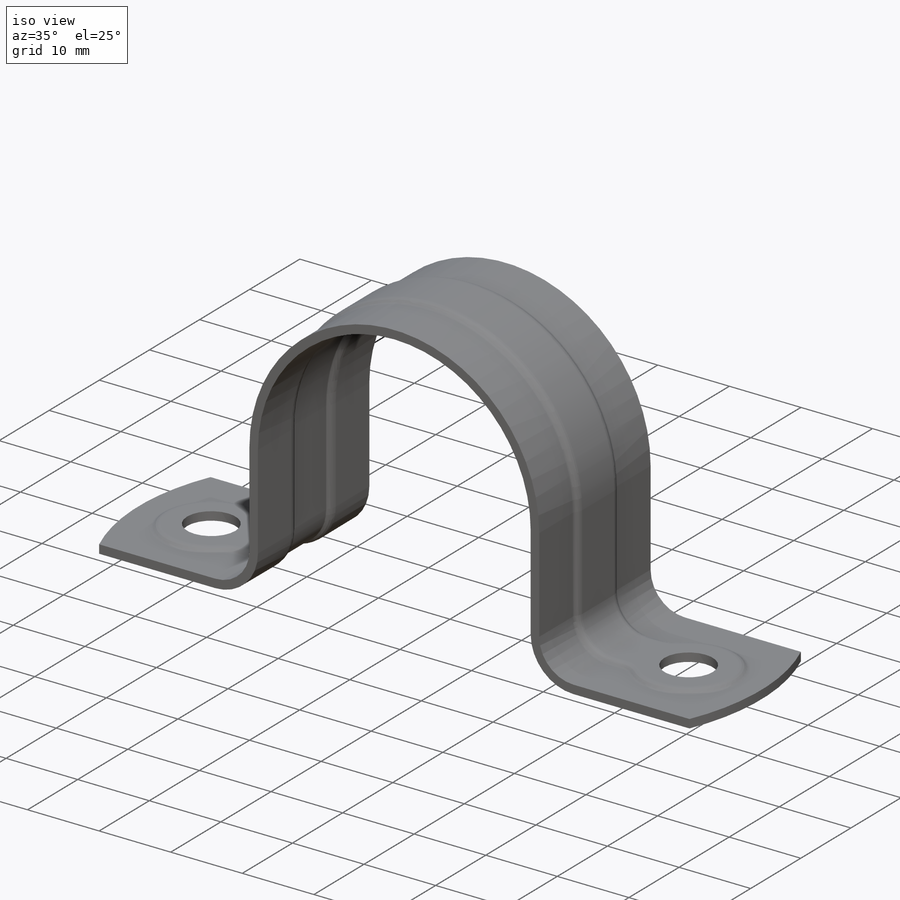
[diagram: iso view]
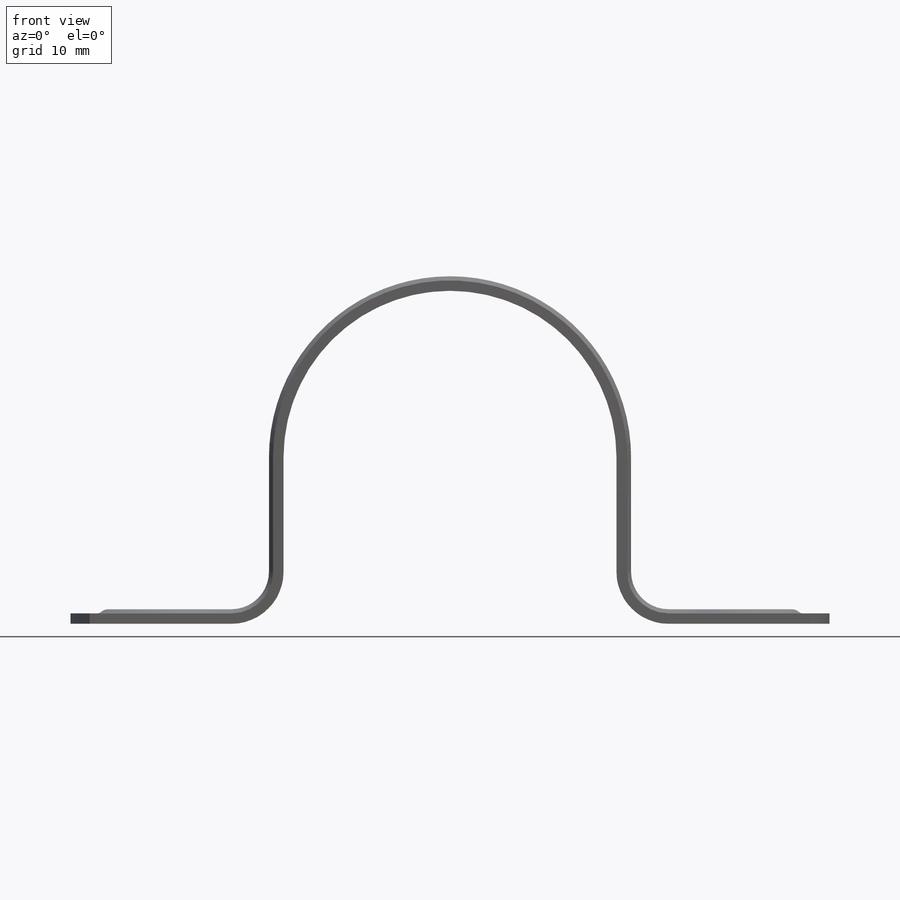
[diagram: front view]
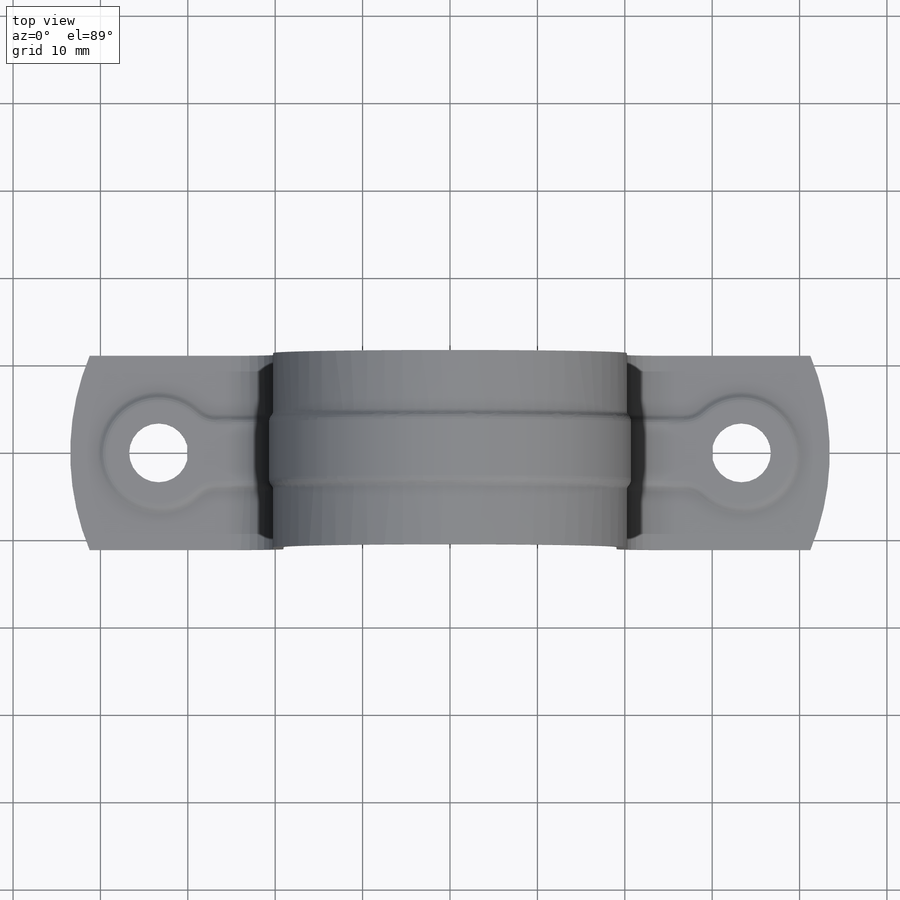
[diagram: top view]
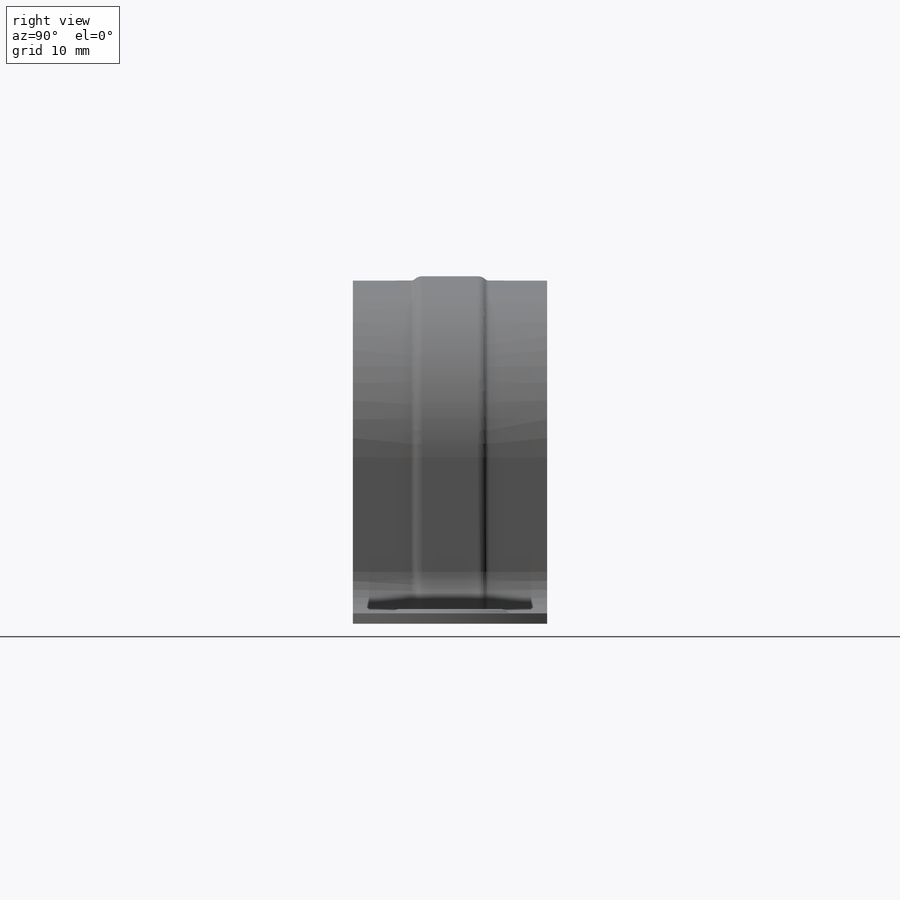
[diagram: right view]
SOLIDWORKS PART (.sldprt)
format: sldprt  version: not decoded by parser v0  size: 570,880 bytes
history: native  units: mm
features: sketch x7, extrude x4, fillet x4, cut_extrude x2, material x1, shell x1, mirror x1 (+15 scaffold rows collapsed)
feature tree (35):
  scaffold x15  (default folders/planes/origin — collapsed)
  material  "Material <not specified>"
  sketch  "Sketch1"  dims[c1.ID=38.1mm c1.D1=12.065mm c1.Mounting Hole=~6.746875mm c1.D3=~20.240625mm c2.D1=4.7625mm c2.D4=12.065mm c2.Thickness=~1.190625mm c2.Center-to-Center=57.15mm c3.Center-to-Center=187.325mm c4.Center-to-Center=66.675mm]
  extrude  "Boss-Extrude1"  Depth=22.225mm Wd=22.225mm
  sketch  "Sketch3"  dims[D1=~6.746875mm]
  cut_extrude  "Cut-Extrude1"  [1 undecoded]
  sketch  "Sketch2"  dims[D1=~0.47625mm]
  extrude  "Boss-Extrude2"  Depth=8.334375mm
  sketch  "Sketch4"  dims[D1=~13.49375mm]
  extrude  "Boss-Extrude3"  [1 undecoded]
  sketch  "Sketch5"  dims[D1=0.0mm]
  extrude  "Boss-Extrude4"  [1 undecoded]
  fillet  "Fillet2"  Radius=2.88925mm
  fillet  "Fillet3"  Radius=1.190625mm
  fillet  "Fillet5"  Radius=0.595313mm
  shell  "Shell1"  Thickness=1.190625mm
  fillet  "Fillet6"  Radius=0.238125mm
  sketch  "Sketch6"  dims[D1=2.2225mm]
  cut_extrude  "Cut-Extrude2"  [1 undecoded]
  mirror  "Mirror1"
  sketch  "Ref1"  dims[D1=24.4475mm]
decode coverage: 14 of 19 modeling features carry decoded parameters
note: ~ marks probable driven/reference dimensions
note: 4 parameter values undecoded
summary: no parameter record found for 4 features
note: suppression state not decoded; provenance and decode notes live in map.json
